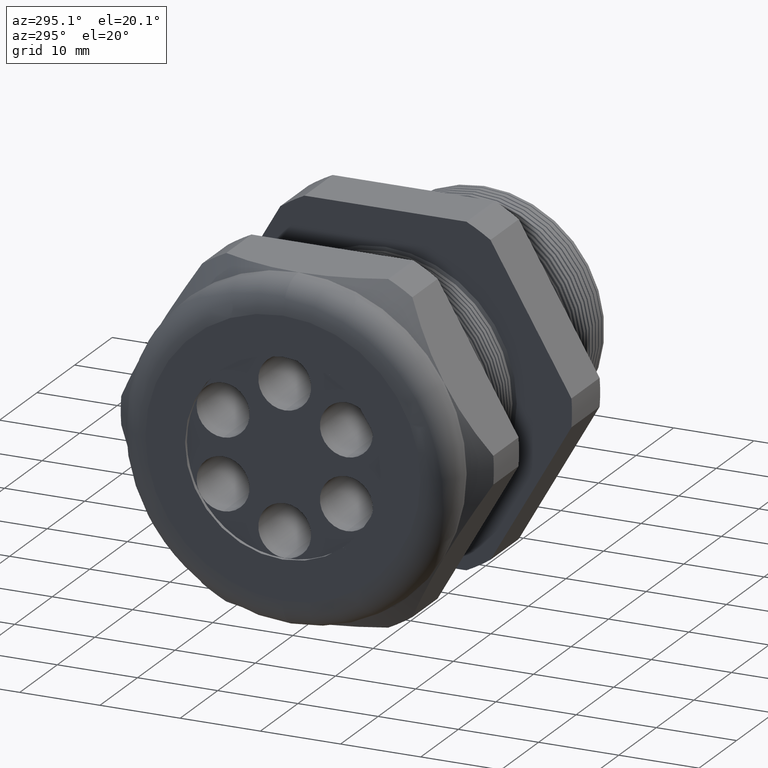
[diagram: clean part render]
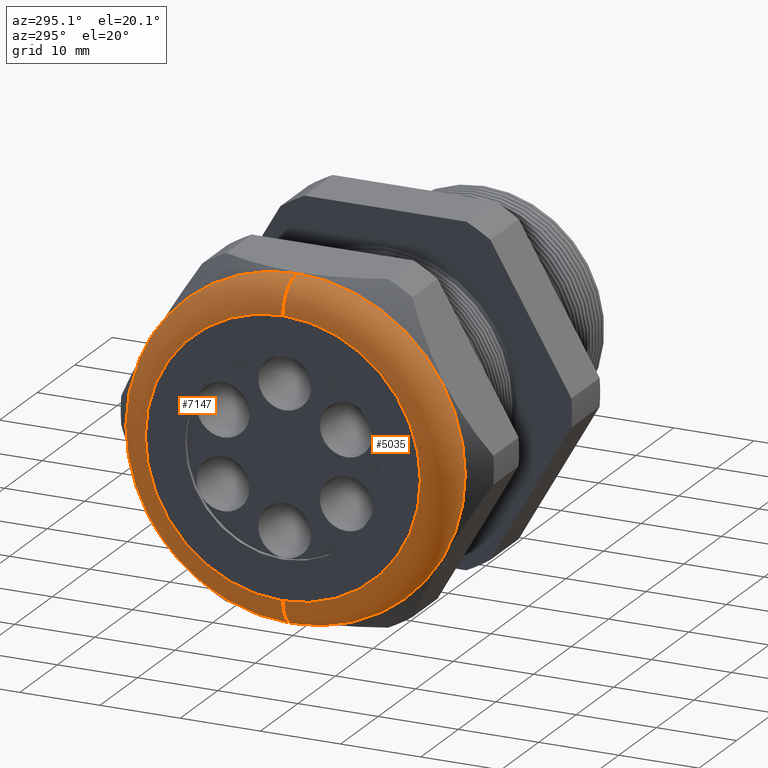
[diagram: same view with one multi-face feature highlighted, each face labeled with its STEP entity id]
A machine part, auxiliary view. The highlighted faces form ONE feature: a constant-radius fillet chain: 2 tangent blend faces with common blend radius 3.81 mm. The faces share edges in the B-rep.
Their STEP definitions:
[1] entity #7147 (Torus):
#2554 = TOROIDAL_SURFACE ( 'NONE', #2617, 0.6749999999999997100, 0.1499999999999999900 ) ;
#2555 = FACE_OUTER_BOUND ( 'NONE', #7141, .T. ) ;
#2560 = CARTESIAN_POINT ( 'NONE',  ( -1.530000000000000000, 0.0000000000000000000, -0.8249999999999998400 ) ) ;
#2566 = DIRECTION ( 'NONE',  ( 0.0000000000000000000, 0.0000000000000000000, 1.000000000000000000 ) ) ;
#2567 = DIRECTION ( 'NONE',  ( 1.000000000000000000, 0.0000000000000000000, 0.0000000000000000000 ) ) ;
#2568 = CARTESIAN_POINT ( 'NONE',  ( -1.530000000000000000, 0.0000000000000000000, 0.0000000000000000000 ) ) ;
#2569 = AXIS2_PLACEMENT_3D ( 'NONE', #2568, #2567, #2566 ) ;
#2570 = CIRCLE ( 'NONE', #2569, 0.8249999999999998400 ) ;
#2614 = DIRECTION ( 'NONE',  ( 0.0000000000000000000, 0.0000000000000000000, 1.000000000000000000 ) ) ;
#2615 = DIRECTION ( 'NONE',  ( -1.000000000000000000, 0.0000000000000000000, 0.0000000000000000000 ) ) ;
#2616 = CARTESIAN_POINT ( 'NONE',  ( -1.530000000000000000, 0.0000000000000000000, 0.0000000000000000000 ) ) ;
#2617 = AXIS2_PLACEMENT_3D ( 'NONE', #2616, #2615, #2614 ) ;
#2888 = CARTESIAN_POINT ( 'NONE',  ( -1.680000000000000200, 0.0000000000000000000, 0.6749999999999997100 ) ) ;
#2930 = DIRECTION ( 'NONE',  ( 0.0000000000000000000, 0.0000000000000000000, -1.000000000000000000 ) ) ;
#2931 = DIRECTION ( 'NONE',  ( 0.0000000000000000000, -1.000000000000000000, 0.0000000000000000000 ) ) ;
#2932 = CARTESIAN_POINT ( 'NONE',  ( -1.530000000000000000, 0.0000000000000000000, 0.6749999999999997100 ) ) ;
#2933 = AXIS2_PLACEMENT_3D ( 'NONE', #2932, #2931, #2930 ) ;
#2934 = CIRCLE ( 'NONE', #2933, 0.1499999999999999700 ) ;
#2971 = DIRECTION ( 'NONE',  ( 0.0000000000000000000, 0.0000000000000000000, 1.000000000000000000 ) ) ;
#2972 = DIRECTION ( 'NONE',  ( -1.000000000000000000, 0.0000000000000000000, 0.0000000000000000000 ) ) ;
#2973 = CARTESIAN_POINT ( 'NONE',  ( -1.680000000000000200, 0.0000000000000000000, 0.0000000000000000000 ) ) ;
#2974 = AXIS2_PLACEMENT_3D ( 'NONE', #2973, #2972, #2971 ) ;
#2975 = CIRCLE ( 'NONE', #2974, 0.6749999999999997100 ) ;
#2976 = CARTESIAN_POINT ( 'NONE',  ( -1.680000000000000200, 9.184850993605146000E-017, -0.6749999999999997100 ) ) ;
#3981 = EDGE_CURVE ( 'NONE', #7145, #7324, #6675, .T. ) ;
#4417 = ORIENTED_EDGE ( 'NONE', *, *, #3981, .T. ) ;
#4420 = VERTEX_POINT ( 'NONE', #6713 ) ;
#6671 = DIRECTION ( 'NONE',  ( 0.0000000000000000000, -1.224646799147353200E-016, 1.000000000000000000 ) ) ;
#6672 = DIRECTION ( 'NONE',  ( 0.0000000000000000000, 1.000000000000000000, 1.224646799147353200E-016 ) ) ;
#6673 = CARTESIAN_POINT ( 'NONE',  ( -1.530000000000000000, 8.266365894244631900E-017, -0.6749999999999997100 ) ) ;
#6674 = AXIS2_PLACEMENT_3D ( 'NONE', #6673, #6672, #6671 ) ;
#6675 = CIRCLE ( 'NONE', #6674, 0.1499999999999999700 ) ;
#6713 = CARTESIAN_POINT ( 'NONE',  ( -1.530000000000000000, 1.010333609296566100E-016, 0.8249999999999998400 ) ) ;
#7140 = EDGE_CURVE ( 'NONE', #7145, #4420, #2570, .T. ) ;
#7141 = EDGE_LOOP ( 'NONE', ( #7150, #4417, #7326, #7292 ) ) ;
#7145 = VERTEX_POINT ( 'NONE', #2560 ) ;
#7147 = ADVANCED_FACE ( 'NONE', ( #2555 ), #2554, .T. ) ;
#7150 = ORIENTED_EDGE ( 'NONE', *, *, #7140, .F. ) ;
#7290 = VERTEX_POINT ( 'NONE', #2888 ) ;
#7292 = ORIENTED_EDGE ( 'NONE', *, *, #7320, .F. ) ;
#7320 = EDGE_CURVE ( 'NONE', #4420, #7290, #2934, .T. ) ;
#7324 = VERTEX_POINT ( 'NONE', #2976 ) ;
#7326 = ORIENTED_EDGE ( 'NONE', *, *, #7327, .F. ) ;
#7327 = EDGE_CURVE ( 'NONE', #7290, #7324, #2975, .T. ) ;
[2] entity #5035 (Torus):
#962 = DIRECTION ( 'NONE',  ( 0.0000000000000000000, 0.0000000000000000000, 1.000000000000000000 ) ) ;
#963 = DIRECTION ( 'NONE',  ( -1.000000000000000000, 0.0000000000000000000, 0.0000000000000000000 ) ) ;
#964 = CARTESIAN_POINT ( 'NONE',  ( -1.680000000000000200, 0.0000000000000000000, 0.0000000000000000000 ) ) ;
#965 = AXIS2_PLACEMENT_3D ( 'NONE', #964, #963, #962 ) ;
#966 = CIRCLE ( 'NONE', #965, 0.6749999999999997100 ) ;
#999 = DIRECTION ( 'NONE',  ( 0.0000000000000000000, 0.0000000000000000000, 1.000000000000000000 ) ) ;
#1000 = DIRECTION ( 'NONE',  ( 1.000000000000000000, 0.0000000000000000000, 0.0000000000000000000 ) ) ;
#1001 = AXIS2_PLACEMENT_3D ( 'NONE', #1007, #1000, #999 ) ;
#1002 = CIRCLE ( 'NONE', #1001, 0.8249999999999998400 ) ;
#1007 = CARTESIAN_POINT ( 'NONE',  ( -1.530000000000000000, 0.0000000000000000000, 0.0000000000000000000 ) ) ;
#1176 = CARTESIAN_POINT ( 'NONE',  ( -1.530000000000000000, 0.0000000000000000000, 0.0000000000000000000 ) ) ;
#1181 = FACE_OUTER_BOUND ( 'NONE', #5036, .T. ) ;
#1238 = DIRECTION ( 'NONE',  ( 0.0000000000000000000, 0.0000000000000000000, 1.000000000000000000 ) ) ;
#1239 = DIRECTION ( 'NONE',  ( -1.000000000000000000, 0.0000000000000000000, 0.0000000000000000000 ) ) ;
#1240 = AXIS2_PLACEMENT_3D ( 'NONE', #1176, #1239, #1238 ) ;
#1241 = TOROIDAL_SURFACE ( 'NONE', #1240, 0.6749999999999997100, 0.1499999999999999900 ) ;
#2560 = CARTESIAN_POINT ( 'NONE',  ( -1.530000000000000000, 0.0000000000000000000, -0.8249999999999998400 ) ) ;
#2888 = CARTESIAN_POINT ( 'NONE',  ( -1.680000000000000200, 0.0000000000000000000, 0.6749999999999997100 ) ) ;
#2930 = DIRECTION ( 'NONE',  ( 0.0000000000000000000, 0.0000000000000000000, -1.000000000000000000 ) ) ;
#2931 = DIRECTION ( 'NONE',  ( 0.0000000000000000000, -1.000000000000000000, 0.0000000000000000000 ) ) ;
#2932 = CARTESIAN_POINT ( 'NONE',  ( -1.530000000000000000, 0.0000000000000000000, 0.6749999999999997100 ) ) ;
#2933 = AXIS2_PLACEMENT_3D ( 'NONE', #2932, #2931, #2930 ) ;
#2934 = CIRCLE ( 'NONE', #2933, 0.1499999999999999700 ) ;
#2976 = CARTESIAN_POINT ( 'NONE',  ( -1.680000000000000200, 9.184850993605146000E-017, -0.6749999999999997100 ) ) ;
#3981 = EDGE_CURVE ( 'NONE', #7145, #7324, #6675, .T. ) ;
#4420 = VERTEX_POINT ( 'NONE', #6713 ) ;
#4887 = EDGE_CURVE ( 'NONE', #7324, #7290, #966, .T. ) ;
#4900 = EDGE_CURVE ( 'NONE', #4420, #7145, #1002, .T. ) ;
#5035 = ADVANCED_FACE ( 'NONE', ( #1181 ), #1241, .T. ) ;
#5036 = EDGE_LOOP ( 'NONE', ( #5091, #5092, #5093, #5094 ) ) ;
#5091 = ORIENTED_EDGE ( 'NONE', *, *, #3981, .F. ) ;
#5092 = ORIENTED_EDGE ( 'NONE', *, *, #4900, .F. ) ;
#5093 = ORIENTED_EDGE ( 'NONE', *, *, #7320, .T. ) ;
#5094 = ORIENTED_EDGE ( 'NONE', *, *, #4887, .F. ) ;
#6671 = DIRECTION ( 'NONE',  ( 0.0000000000000000000, -1.224646799147353200E-016, 1.000000000000000000 ) ) ;
#6672 = DIRECTION ( 'NONE',  ( 0.0000000000000000000, 1.000000000000000000, 1.224646799147353200E-016 ) ) ;
#6673 = CARTESIAN_POINT ( 'NONE',  ( -1.530000000000000000, 8.266365894244631900E-017, -0.6749999999999997100 ) ) ;
#6674 = AXIS2_PLACEMENT_3D ( 'NONE', #6673, #6672, #6671 ) ;
#6675 = CIRCLE ( 'NONE', #6674, 0.1499999999999999700 ) ;
#6713 = CARTESIAN_POINT ( 'NONE',  ( -1.530000000000000000, 1.010333609296566100E-016, 0.8249999999999998400 ) ) ;
#7145 = VERTEX_POINT ( 'NONE', #2560 ) ;
#7290 = VERTEX_POINT ( 'NONE', #2888 ) ;
#7320 = EDGE_CURVE ( 'NONE', #4420, #7290, #2934, .T. ) ;
#7324 = VERTEX_POINT ( 'NONE', #2976 ) ;